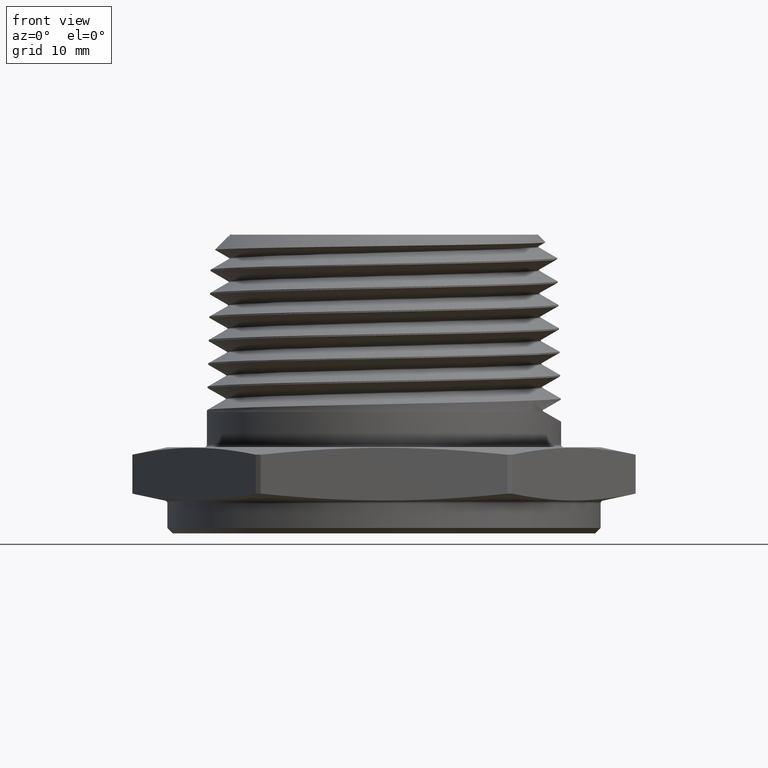
[diagram: clean part render]
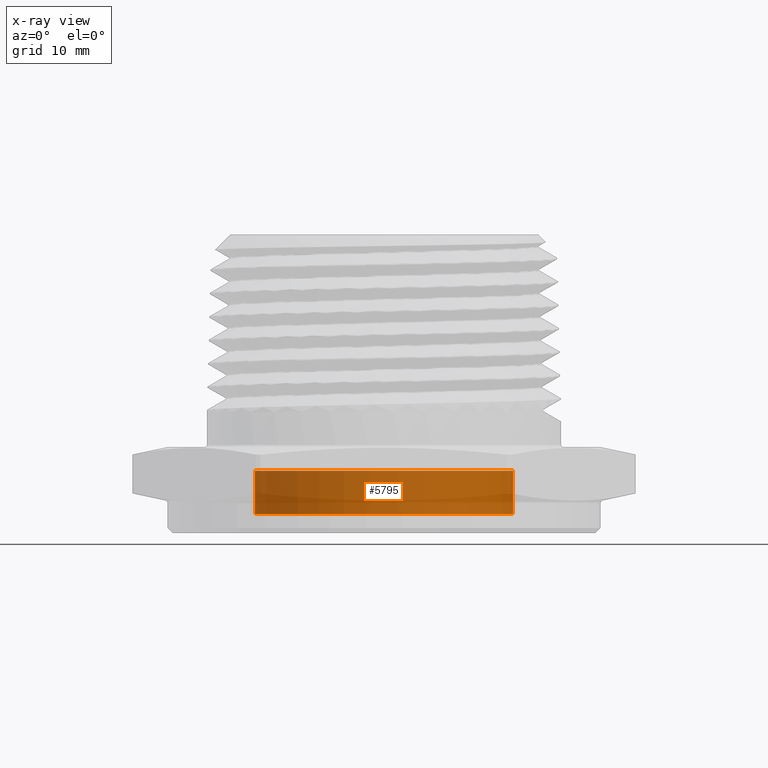
[diagram: x-ray — body ghosted, one internal face saturated and labeled with its STEP entity id]
A machine part, front view, then the same camera in x-ray: the body is ghosted and one INTERNAL B-rep face — a face not visible from any outside direction — is saturated and labeled: STEP entity #5795.
In plain terms, the highlighted cylindrical surface (partial cylindrical patch) has radius 12.192 mm, axis along (-0, -0, -1).
Its self-contained STEP definition (entity closure, byte-faithful):
#3 = VECTOR ( 'NONE', #5728, 39.37007874015748100 ) ;
#192 = FACE_OUTER_BOUND ( 'NONE', #270, .T. ) ;
#202 = CYLINDRICAL_SURFACE ( 'NONE', #1529, 0.4799999999999999800 ) ;
#270 = EDGE_LOOP ( 'NONE', ( #4726, #4864, #4925, #1671 ) ) ;
#716 = DIRECTION ( 'NONE',  ( -1.000000000000000000, 0.0000000000000000000, 0.0000000000000000000 ) ) ;
#717 = CARTESIAN_POINT ( 'NONE',  ( 2.449293598294655500E-018, 0.0000000000000000000, 0.1119999999999999900 ) ) ;
#718 = DIRECTION ( 'NONE',  ( -0.0000000000000000000, -0.0000000000000000000, -1.000000000000000000 ) ) ;
#824 = LINE ( 'NONE', #5727, #1683 ) ;
#1529 = AXIS2_PLACEMENT_3D ( 'NONE', #717, #718, #716 ) ;
#1561 = CIRCLE ( 'NONE', #3931, 0.4799999999999999800 ) ;
#1671 = ORIENTED_EDGE ( 'NONE', *, *, #3762, .T. ) ;
#1683 = VECTOR ( 'NONE', #5726, 39.37007874015748100 ) ;
#3757 = EDGE_CURVE ( 'NONE', #4759, #4762, #6761, .T. ) ;
#3760 = EDGE_CURVE ( 'NONE', #4764, #4761, #824, .T. ) ;
#3761 = EDGE_CURVE ( 'NONE', #4764, #4759, #6764, .T. ) ;
#3762 = EDGE_CURVE ( 'NONE', #4761, #4762, #1561, .T. ) ;
#3930 = AXIS2_PLACEMENT_3D ( 'NONE', #5715, #5714, #5713 ) ;
#3931 = AXIS2_PLACEMENT_3D ( 'NONE', #5712, #5711, #5710 ) ;
#4350 = CARTESIAN_POINT ( 'NONE',  ( 0.4799999999999999800, 5.878304635907294700E-017, -0.04800000000000000800 ) ) ;
#4351 = CARTESIAN_POINT ( 'NONE',  ( 0.4799999999999999800, 5.878304635907294700E-017, 0.1119999999999999900 ) ) ;
#4354 = CARTESIAN_POINT ( 'NONE',  ( -0.4799999999999999800, 0.0000000000000000000, -0.04800000000000000800 ) ) ;
#4356 = CARTESIAN_POINT ( 'NONE',  ( -0.4799999999999999800, 0.0000000000000000000, 0.1119999999999999900 ) ) ;
#4726 = ORIENTED_EDGE ( 'NONE', *, *, #3757, .F. ) ;
#4759 = VERTEX_POINT ( 'NONE', #4351 ) ;
#4761 = VERTEX_POINT ( 'NONE', #4354 ) ;
#4762 = VERTEX_POINT ( 'NONE', #4350 ) ;
#4764 = VERTEX_POINT ( 'NONE', #4356 ) ;
#4864 = ORIENTED_EDGE ( 'NONE', *, *, #3761, .F. ) ;
#4925 = ORIENTED_EDGE ( 'NONE', *, *, #3760, .T. ) ;
#5710 = DIRECTION ( 'NONE',  ( 1.000000000000000000, 0.0000000000000000000, 0.0000000000000000000 ) ) ;
#5711 = DIRECTION ( 'NONE',  ( 0.0000000000000000000, 0.0000000000000000000, 1.000000000000000000 ) ) ;
#5712 = CARTESIAN_POINT ( 'NONE',  ( 2.449293598294655500E-018, 0.0000000000000000000, -0.04800000000000000800 ) ) ;
#5713 = DIRECTION ( 'NONE',  ( 1.000000000000000000, 0.0000000000000000000, 0.0000000000000000000 ) ) ;
#5714 = DIRECTION ( 'NONE',  ( 0.0000000000000000000, 0.0000000000000000000, 1.000000000000000000 ) ) ;
#5715 = CARTESIAN_POINT ( 'NONE',  ( 2.449293598294655500E-018, 0.0000000000000000000, 0.1119999999999999900 ) ) ;
#5726 = DIRECTION ( 'NONE',  ( -0.0000000000000000000, -0.0000000000000000000, -1.000000000000000000 ) ) ;
#5727 = CARTESIAN_POINT ( 'NONE',  ( -0.4799999999999999800, 0.0000000000000000000, 0.1119999999999999900 ) ) ;
#5728 = DIRECTION ( 'NONE',  ( -0.0000000000000000000, -0.0000000000000000000, -1.000000000000000000 ) ) ;
#5795 = ADVANCED_FACE ( 'NONE', ( #192 ), #202, .T. ) ;
#6094 = CARTESIAN_POINT ( 'NONE',  ( 0.4799999999999999800, 5.878304635907294700E-017, 0.1119999999999999900 ) ) ;
#6761 = LINE ( 'NONE', #6094, #3 ) ;
#6764 = CIRCLE ( 'NONE', #3930, 0.4799999999999999800 ) ;